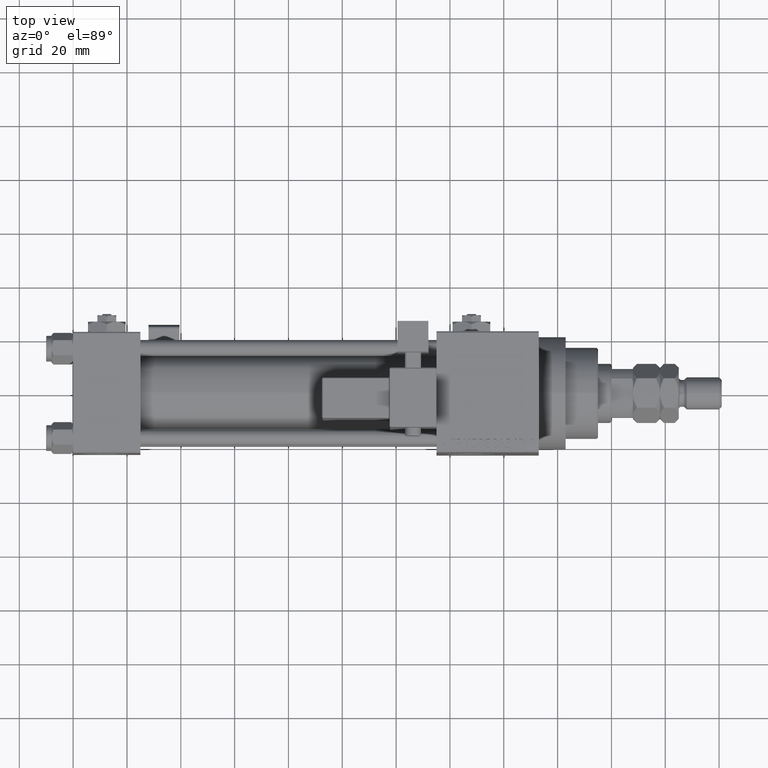
[diagram: clean part render]
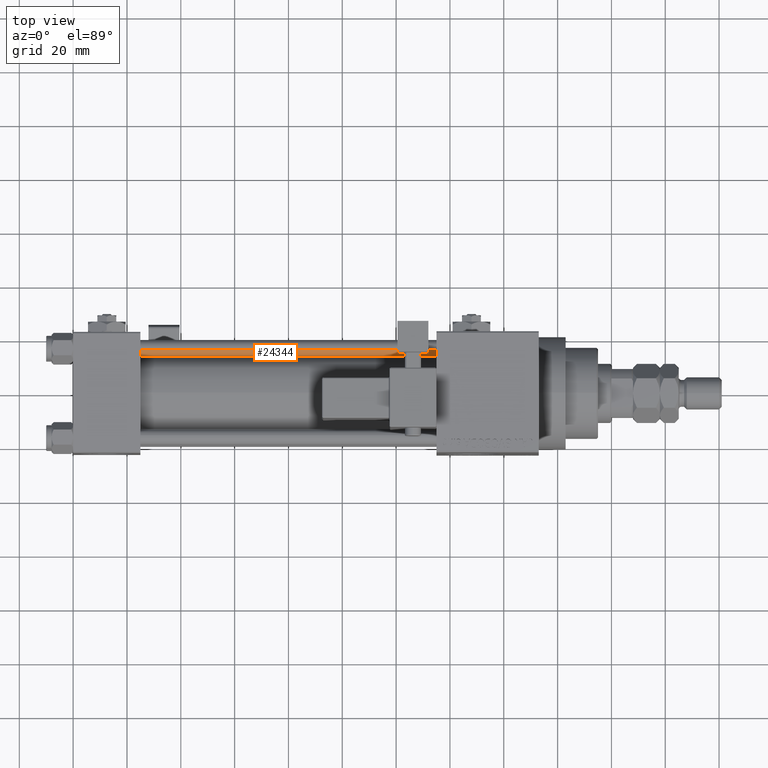
[diagram: same view with one face highlighted and labeled with its STEP entity id]
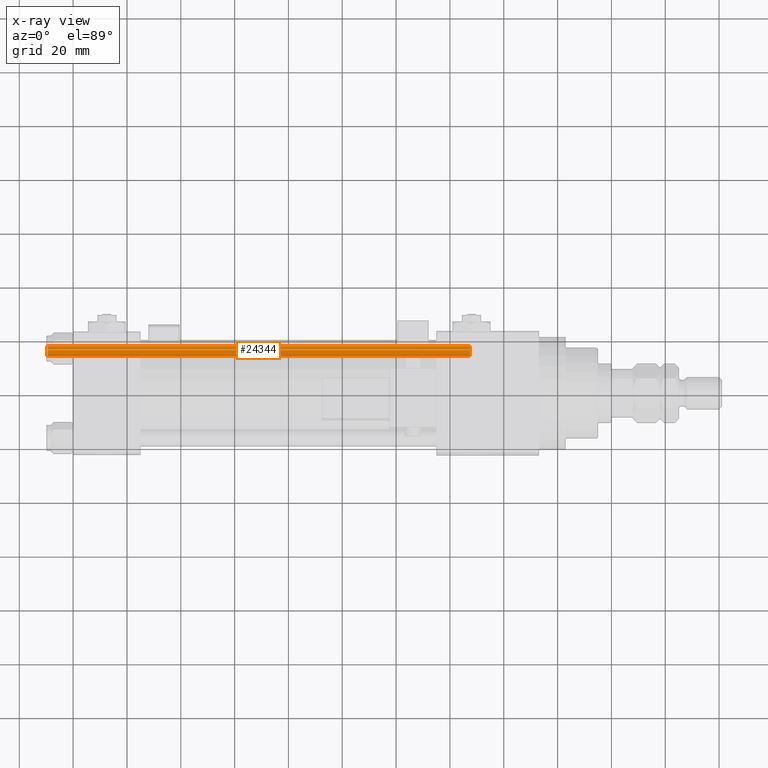
[diagram: x-ray of the same camera — body ghosted, the highlighted face saturated]
A machine part, top view. The second image highlights one B-rep face of the part: STEP entity #24344.
The next image is the same camera in x-ray: the body ghosted, the highlighted face saturated — about 0% of this face is hidden behind the body in this view.
In plain terms, the highlighted cylindrical surface (edge-blend (fillet) strip) has radius 3 mm, axis along (-1, -0, 0).
Its self-contained STEP definition (entity closure, byte-faithful):
#2551 = EDGE_CURVE ( 'NONE', #22905, #46347, #29197, .T. ) ;
#3430 = CARTESIAN_POINT ( 'NONE',  ( -3.000000000000000444, 0.000000000000000000, 157.5000000000000000 ) ) ;
#4327 = CARTESIAN_POINT ( 'NONE',  ( 3.000000000000000444, 3.673940397442060361E-16, 158.0000000000000000 ) ) ;
#6402 = FACE_OUTER_BOUND ( 'NONE', #19177, .T. ) ;
#6585 = EDGE_CURVE ( 'NONE', #12872, #46347, #11054, .T. ) ;
#7378 = ORIENTED_EDGE ( 'NONE', *, *, #15538, .T. ) ;
#8373 = CARTESIAN_POINT ( 'NONE',  ( 3.000000000000000444, 3.673940397442060361E-16, 157.5000000000000000 ) ) ;
#11054 = CIRCLE ( 'NONE', #46968, 3.000000000000000444 ) ;
#12872 = VERTEX_POINT ( 'NONE', #18989 ) ;
#14355 = CARTESIAN_POINT ( 'NONE',  ( -3.000000000000000444, 0.000000000000000000, 158.0000000000000000 ) ) ;
#14438 = CYLINDRICAL_SURFACE ( 'NONE', #30579, 3.000000000000000444 ) ;
#15538 = EDGE_CURVE ( 'NONE', #47833, #12872, #30678, .T. ) ;
#18989 = CARTESIAN_POINT ( 'NONE',  ( -3.000000000000000444, 0.000000000000000000, 0.5000000000000281997 ) ) ;
#19177 = EDGE_LOOP ( 'NONE', ( #20157, #30179, #7378, #31444 ) ) ;
#20157 = ORIENTED_EDGE ( 'NONE', *, *, #2551, .F. ) ;
#22905 = VERTEX_POINT ( 'NONE', #8373 ) ;
#24344 = ADVANCED_FACE ( 'NONE', ( #6402 ), #14438, .T. ) ;
#25410 = VECTOR ( 'NONE', #37494, 1000.000000000000000 ) ;
#26004 = DIRECTION ( 'NONE',  ( 1.000000000000000000, 0.000000000000000000, 0.000000000000000000 ) ) ;
#27826 = DIRECTION ( 'NONE',  ( 1.000000000000000000, 0.000000000000000000, 0.000000000000000000 ) ) ;
#28103 = CARTESIAN_POINT ( 'NONE',  ( 0.000000000000000000, 0.000000000000000000, 0.5000000000000281997 ) ) ;
#29197 = LINE ( 'NONE', #4327, #25410 ) ;
#30179 = ORIENTED_EDGE ( 'NONE', *, *, #48372, .T. ) ;
#30579 = AXIS2_PLACEMENT_3D ( 'NONE', #35037, #34233, #46843 ) ;
#30678 = LINE ( 'NONE', #14355, #31084 ) ;
#31084 = VECTOR ( 'NONE', #31469, 1000.000000000000000 ) ;
#31444 = ORIENTED_EDGE ( 'NONE', *, *, #6585, .T. ) ;
#31469 = DIRECTION ( 'NONE',  ( -0.000000000000000000, -0.000000000000000000, -1.000000000000000000 ) ) ;
#31830 = DIRECTION ( 'NONE',  ( -0.000000000000000000, -0.000000000000000000, 1.000000000000000000 ) ) ;
#32265 = AXIS2_PLACEMENT_3D ( 'NONE', #46353, #42591, #26004 ) ;
#34233 = DIRECTION ( 'NONE',  ( -0.000000000000000000, -0.000000000000000000, -1.000000000000000000 ) ) ;
#34250 = CARTESIAN_POINT ( 'NONE',  ( 3.000000000000000444, 3.673940397442060361E-16, 0.5000000000000281997 ) ) ;
#35037 = CARTESIAN_POINT ( 'NONE',  ( 0.000000000000000000, 0.000000000000000000, 158.0000000000000000 ) ) ;
#37494 = DIRECTION ( 'NONE',  ( -0.000000000000000000, -0.000000000000000000, -1.000000000000000000 ) ) ;
#42591 = DIRECTION ( 'NONE',  ( 0.000000000000000000, 0.000000000000000000, -1.000000000000000000 ) ) ;
#46347 = VERTEX_POINT ( 'NONE', #34250 ) ;
#46353 = CARTESIAN_POINT ( 'NONE',  ( 0.000000000000000000, 0.000000000000000000, 157.5000000000000000 ) ) ;
#46843 = DIRECTION ( 'NONE',  ( -1.000000000000000000, 0.000000000000000000, 0.000000000000000000 ) ) ;
#46968 = AXIS2_PLACEMENT_3D ( 'NONE', #28103, #31830, #27826 ) ;
#47833 = VERTEX_POINT ( 'NONE', #3430 ) ;
#48372 = EDGE_CURVE ( 'NONE', #22905, #47833, #52803, .T. ) ;
#52803 = CIRCLE ( 'NONE', #32265, 3.000000000000000444 ) ;